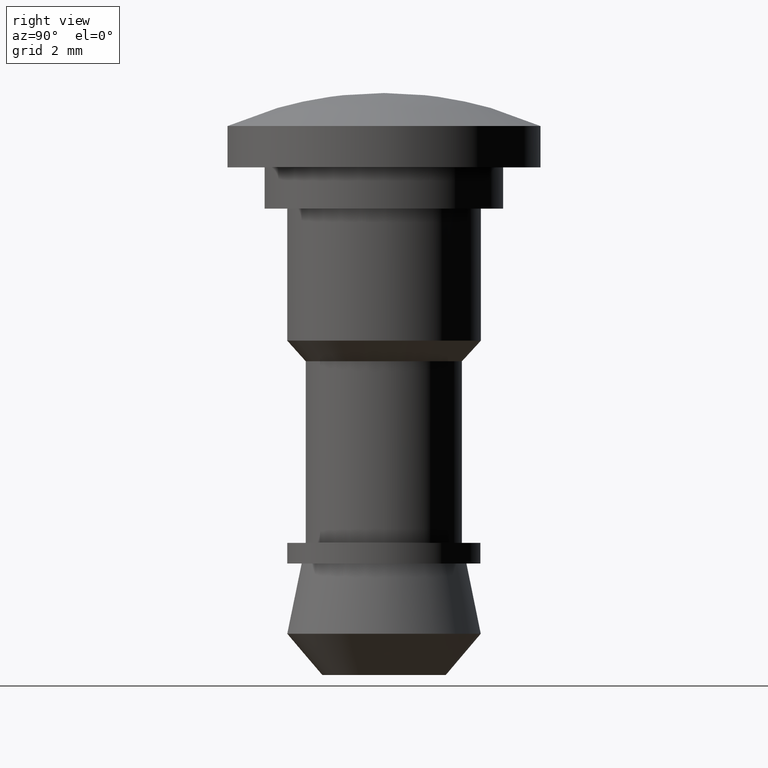
[diagram: clean part render]
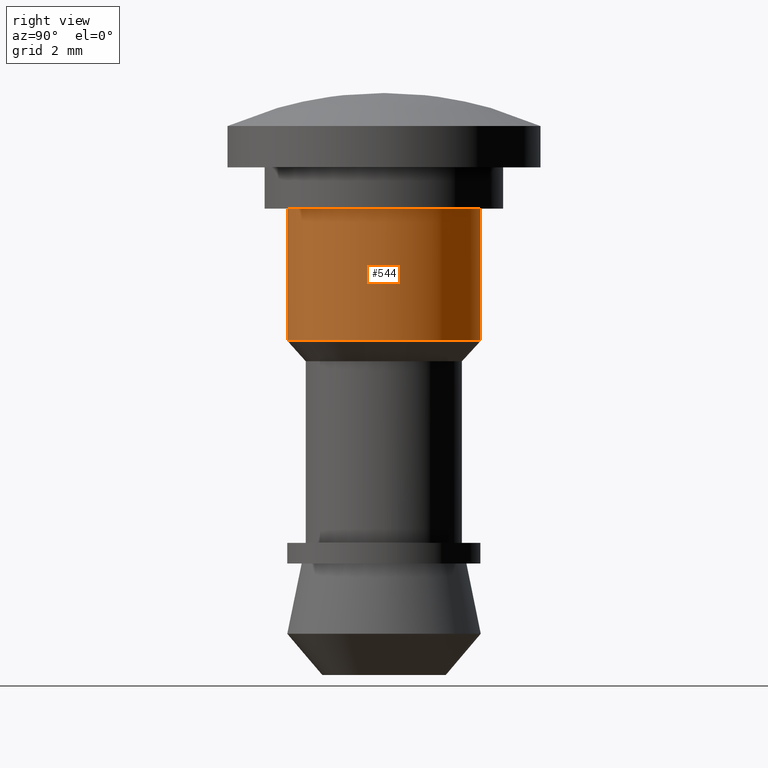
[diagram: same view with one face highlighted and labeled with its STEP entity id]
A machine part, right view. The second image highlights one B-rep face of the part: STEP entity #544.
In plain terms, the highlighted face is a freeform B-spline surface patch.
Its self-contained STEP definition (entity closure, byte-faithful):
#416=CARTESIAN_POINT('',(-0.143464067906914,2.345616776291387,0.080000000000003));
#417=CARTESIAN_POINT('',(2.202152708384472,2.489080844198301,0.080000000000003));
#418=CARTESIAN_POINT('',(2.345616776291387,0.143464067906914,0.080000000000003));
#419=CARTESIAN_POINT('',(2.489080844198301,-2.202152708384472,0.080000000000003));
#420=CARTESIAN_POINT('',(0.143464067906914,-2.345616776291387,0.080000000000003));
#421=CARTESIAN_POINT('',(-0.143464067906914,2.345616776291387,-3.282000000000108));
#422=CARTESIAN_POINT('',(2.202152708384472,2.489080844198301,-3.282000000000109));
#423=CARTESIAN_POINT('',(2.345616776291387,0.143464067906914,-3.282000000000108));
#424=CARTESIAN_POINT('',(2.489080844198301,-2.202152708384472,-3.282000000000109));
#425=CARTESIAN_POINT('',(0.143464067906914,-2.345616776291387,-3.282000000000108));
#433=(BOUNDED_SURFACE()B_SPLINE_SURFACE(2,1,((#416,#421),(#417,#422),(#418,#423),(#419,#424),(#420,#425)),.UNSPECIFIED.,.F.,.F.,.U.)B_SPLINE_SURFACE_WITH_KNOTS((3,2,3),(2,2),(0.0,3.893607486307092,7.787214972614184),(0.0,3.362000000000111),.UNSPECIFIED.)GEOMETRIC_REPRESENTATION_ITEM()RATIONAL_B_SPLINE_SURFACE(((1.0,1.0),(0.707106781186548,0.707106781186548),(1.0,1.0),(0.707106781186548,0.707106781186548),(1.0,1.0)))REPRESENTATION_ITEM('')SURFACE());
#434=CARTESIAN_POINT('',(-0.143463260338054,2.345616825684135,-3.200000000000103));
#435=VERTEX_POINT('',#434);
#436=CARTESIAN_POINT('',(1.981144114829307,1.263949364602169,-3.199999999999861));
#437=VERTEX_POINT('',#436);
#438=CARTESIAN_POINT('',(-0.143463260338054,2.345616825684135,-3.200000000000102));
#439=CARTESIAN_POINT('',(-0.071798183918505,2.350000000000001,-3.200000000000105));
#440=CARTESIAN_POINT('',(0.0,2.350000000000000,-3.200000000000105));
#441=CARTESIAN_POINT('',(1.288255091629219,2.349999999999999,-3.200000000000105));
#442=CARTESIAN_POINT('',(1.981144114829307,1.263949364602168,-3.199999999999861));
#450=(BOUNDED_CURVE()B_SPLINE_CURVE(2,(#438,#439,#440,#441,#442),.UNSPECIFIED.,.F.,.U.)B_SPLINE_CURVE_WITH_KNOTS((3,2,3),(0.239333081053729,0.250000000000000,0.407950112627035),.UNSPECIFIED.)CURVE()GEOMETRIC_REPRESENTATION_ITEM()RATIONAL_B_SPLINE_CURVE((0.976072296309554,0.987502927100018,1.0,0.814949932402881,0.863729296954605))REPRESENTATION_ITEM(''));
#451=EDGE_CURVE('',#435,#437,#450,.T.);
#452=ORIENTED_EDGE('',*,*,#451,.F.);
#453=CARTESIAN_POINT('',(-0.143463270287300,2.345616825075620,-7.632783E-017));
#454=VERTEX_POINT('',#453);
#455=CARTESIAN_POINT('',(-0.143463270287300,2.345616825075620,-7.632783E-017));
#456=CARTESIAN_POINT('',(-0.143463260338054,2.345616825684135,-3.200000000000103));
#457=QUASI_UNIFORM_CURVE('',1,(#455,#456),.UNSPECIFIED.,.F.,.U.);
#458=EDGE_CURVE('',#454,#435,#457,.T.);
#459=ORIENTED_EDGE('',*,*,#458,.F.);
#460=CARTESIAN_POINT('',(2.350000000000000,0.0,0.0));
#461=VERTEX_POINT('',#460);
#462=CARTESIAN_POINT('',(-0.143463270287300,2.345616825075620,-7.632783E-017));
#463=CARTESIAN_POINT('',(-0.071798193895647,2.350000000000000,0.0));
#464=CARTESIAN_POINT('',(0.0,2.350000000000000,0.0));
#465=CARTESIAN_POINT('',(2.350000000000001,2.350000000000001,0.0));
#466=CARTESIAN_POINT('',(2.350000000000000,0.0,0.0));
#474=(BOUNDED_CURVE()B_SPLINE_CURVE(2,(#462,#463,#464,#465,#466),.UNSPECIFIED.,.F.,.U.)B_SPLINE_CURVE_WITH_KNOTS((3,2,3),(0.239333079589968,0.250000000000000,0.500000000000000),.UNSPECIFIED.)CURVE()GEOMETRIC_REPRESENTATION_ITEM()RATIONAL_B_SPLINE_CURVE((0.976072293172433,0.987502925385116,1.0,0.707106781186547,1.0))REPRESENTATION_ITEM(''));
#475=EDGE_CURVE('',#454,#461,#474,.T.);
#476=ORIENTED_EDGE('',*,*,#475,.T.);
#477=CARTESIAN_POINT('',(0.143463270287300,-2.345616825075620,-7.632783E-017));
#478=VERTEX_POINT('',#477);
#479=CARTESIAN_POINT('',(2.350000000000000,0.0,0.0));
#480=CARTESIAN_POINT('',(2.350000000000001,-2.210660763493774,0.0));
#481=CARTESIAN_POINT('',(0.143463270287300,-2.345616825075620,-7.632783E-017));
#489=(BOUNDED_CURVE()B_SPLINE_CURVE(2,(#479,#480,#481),.UNSPECIFIED.,.F.,.U.)B_SPLINE_CURVE_WITH_KNOTS((3,3),(0.500000000000000,0.739333079589967),.UNSPECIFIED.)CURVE()GEOMETRIC_REPRESENTATION_ITEM()RATIONAL_B_SPLINE_CURVE((1.0,0.719603855801433,0.976072293172431))REPRESENTATION_ITEM(''));
#490=EDGE_CURVE('',#461,#478,#489,.T.);
#491=ORIENTED_EDGE('',*,*,#490,.T.);
#492=CARTESIAN_POINT('',(0.143463863382890,-2.345616788800594,-3.200000000000104));
#493=VERTEX_POINT('',#492);
#494=CARTESIAN_POINT('',(0.143463270287300,-2.345616825075620,-7.632783E-017));
#495=CARTESIAN_POINT('',(0.143463863382890,-2.345616788800594,-3.200000000000104));
#496=QUASI_UNIFORM_CURVE('',1,(#494,#495),.UNSPECIFIED.,.F.,.U.);
#497=EDGE_CURVE('',#478,#493,#496,.T.);
#498=ORIENTED_EDGE('',*,*,#497,.T.);
#499=CARTESIAN_POINT('',(0.184378874960866,-2.342755734272870,-3.200000000000044));
#500=VERTEX_POINT('',#499);
#501=CARTESIAN_POINT('',(0.184378874960866,-2.342755734272870,-3.200000000000044));
#502=CARTESIAN_POINT('',(0.163933751111707,-2.344364800415995,-3.200000000000105));
#503=CARTESIAN_POINT('',(0.143463863382890,-2.345616788800594,-3.200000000000104));
#511=(BOUNDED_CURVE()B_SPLINE_CURVE(2,(#501,#502,#503),.UNSPECIFIED.,.F.,.U.)B_SPLINE_CURVE_WITH_KNOTS((3,3),(0.736331300632705,0.739332992332105),.UNSPECIFIED.)CURVE()GEOMETRIC_REPRESENTATION_ITEM()RATIONAL_B_SPLINE_CURVE((0.969723356171686,0.972855506963194,0.976072106162101))REPRESENTATION_ITEM(''));
#512=EDGE_CURVE('',#500,#493,#511,.T.);
#513=ORIENTED_EDGE('',*,*,#512,.F.);
#514=CARTESIAN_POINT('',(2.350000000000000,0.0,-3.200000000000105));
#515=VERTEX_POINT('',#514);
#516=CARTESIAN_POINT('',(2.350000000000000,0.0,-3.200000000000105));
#517=CARTESIAN_POINT('',(2.350000000000001,-2.172317655395987,-3.200000000000105));
#518=CARTESIAN_POINT('',(0.184378874960865,-2.342755734272870,-3.200000000000044));
#526=(BOUNDED_CURVE()B_SPLINE_CURVE(2,(#516,#517,#518),.UNSPECIFIED.,.F.,.U.)B_SPLINE_CURVE_WITH_KNOTS((3,3),(0.500000000000000,0.736331300632704),.UNSPECIFIED.)CURVE()GEOMETRIC_REPRESENTATION_ITEM()RATIONAL_B_SPLINE_CURVE((1.0,0.723120658605271,0.969723356171684))REPRESENTATION_ITEM(''));
#527=EDGE_CURVE('',#515,#500,#526,.T.);
#528=ORIENTED_EDGE('',*,*,#527,.F.);
#529=CARTESIAN_POINT('',(1.981144114829306,1.263949364602169,-3.199999999999861));
#530=CARTESIAN_POINT('',(2.350000000000000,0.685795930145743,-3.200000000000105));
#531=CARTESIAN_POINT('',(2.350000000000000,0.0,-3.200000000000105));
#539=(BOUNDED_CURVE()B_SPLINE_CURVE(2,(#529,#530,#531),.UNSPECIFIED.,.F.,.U.)B_SPLINE_CURVE_WITH_KNOTS((3,3),(0.407950112627035,0.500000000000000),.UNSPECIFIED.)CURVE()GEOMETRIC_REPRESENTATION_ITEM()RATIONAL_B_SPLINE_CURVE((0.863729296954605,0.892156848783666,1.0))REPRESENTATION_ITEM(''));
#540=EDGE_CURVE('',#437,#515,#539,.T.);
#541=ORIENTED_EDGE('',*,*,#540,.F.);
#542=EDGE_LOOP('',(#452,#459,#476,#491,#498,#513,#528,#541));
#543=FACE_OUTER_BOUND('',#542,.T.);
#544=ADVANCED_FACE('',(#543),#433,.T.);